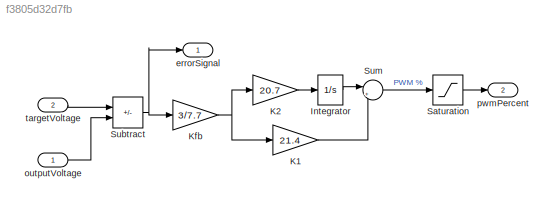
MODEL slx_f3805d32d7fb
KIND model
CONFIG AbsTol = auto
CONFIG EnableMultiTasking = off
CONFIG FixedStep = auto
CONFIG MaxStep = auto
CONFIG MinStep = auto
CONFIG RelTol = 1e-3
CONFIG SampleTimeConstraint = Unconstrained
CONFIG SolverName = VariableStepAuto
CONFIG StartTime = 0.0
CONFIG StopTime = 10.0
WORKSPACE source: mxarray member
WORKSPACE C: Simulink.Parameter (value not decoded)
WORKSPACE L: Simulink.Parameter (value not decoded)
WORKSPACE R: Simulink.Parameter (value not decoded)
WORKSPACE Vs: Simulink.Parameter (value not decoded)
BLOCK [Integrator] Integrator
BLOCK [Gain] K1
  Gain = 21.4
BLOCK [Gain] K2
  Gain = 20.7
BLOCK [Gain] Kfb
  Gain = 3/7.7
BLOCK [Saturate] Saturation
  LowerLimit = 0
  UpperLimit = 1
BLOCK [Sum] Subtract
  IconShape = rectangular
  Inputs = +-
BLOCK [Sum] Sum
  Inputs = |++
  NameLocation = top
BLOCK [Outport] errorSignal
BLOCK [Inport] outputVoltage
BLOCK [Outport] pwmPercent
  Port = 2
BLOCK [Inport] targetVoltage
  Port = 2
LINE Integrator:1 -> Sum:1
LINE K1:1 -> Sum:2
LINE K2:1 -> Integrator:1
NET Kfb:1 -> K1:1, K2:1
LINE Saturation:1 -> pwmPercent:1
NET Subtract:1 -> Kfb:1, errorSignal:1
LINE Sum:1 -> Saturation:1
LINE outputVoltage:1 -> Subtract:2
LINE targetVoltage:1 -> Subtract:1
note: NET lines group one-source signal fan-out (src -> all destinations, sorted); 1:1 wires keep LINE
